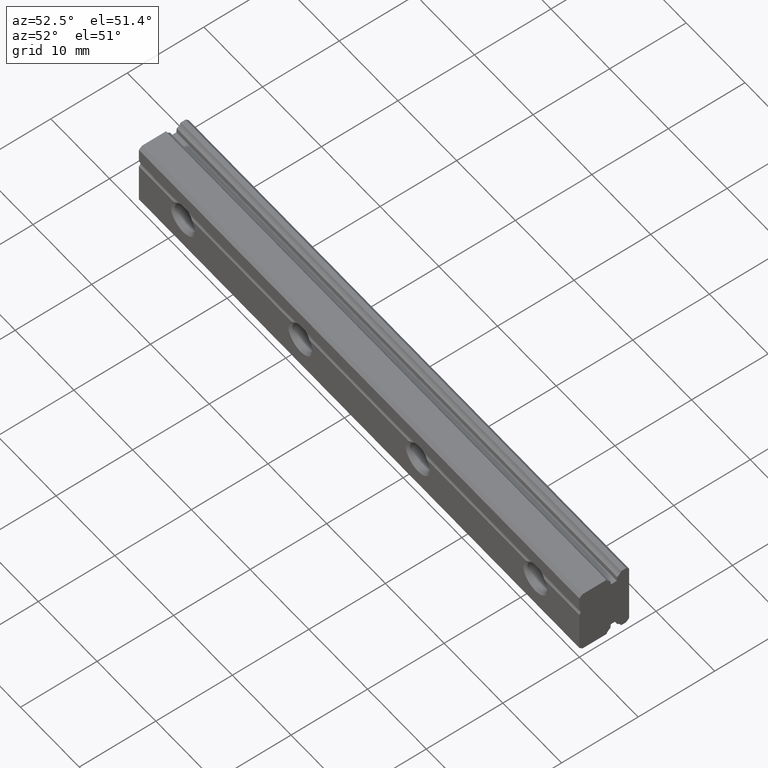
[diagram: clean part render]
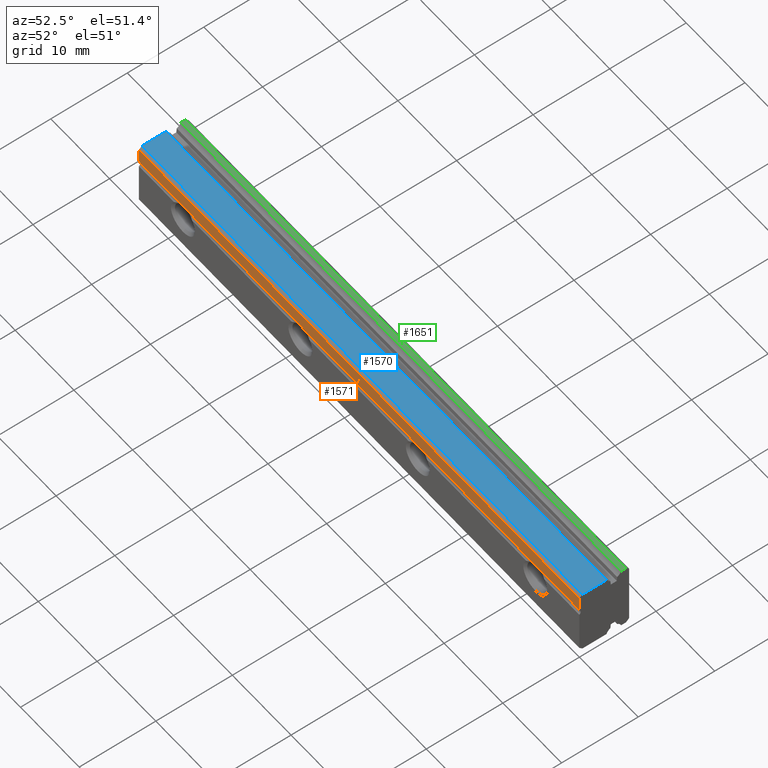
[diagram: same view with three faces highlighted in distinct colors, each labeled with its STEP entity id]
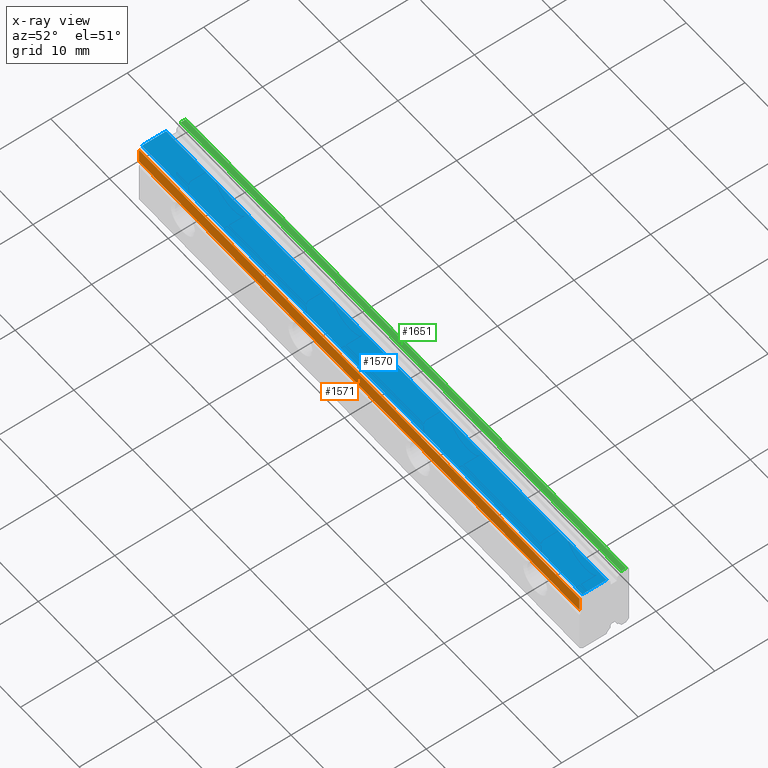
[diagram: x-ray of the same camera — body ghosted, the three highlighted faces saturated]
A machine part, auxiliary view with three faces highlighted in distinct colors.
The next image is the same camera in x-ray (body ghosted, the three faces saturated) — at least one of them is partly hidden behind the body in this view.
Their STEP definitions:

[orange] entity #1571 — the highlighted planar face has unit normal (0, -1, -0).
#647 = CARTESIAN_POINT ( 'NONE',  ( -75.00000000000000000, -1.084202172485504400E-016, 2.199999999999999300 ) ) ;
#654 = VECTOR ( 'NONE', #715, 1000.000000000000000 ) ;
#655 = CARTESIAN_POINT ( 'NONE',  ( -75.00000000000000000, -6.505213034913026600E-016, 4.100000000000000500 ) ) ;
#656 = LINE ( 'NONE', #655, #654 ) ;
#657 = DIRECTION ( 'NONE',  ( 0.0000000000000000000, 2.567847250623561900E-016, -1.000000000000000000 ) ) ;
#658 = VECTOR ( 'NONE', #657, 1000.000000000000000 ) ;
#659 = CARTESIAN_POINT ( 'NONE',  ( 0.0000000000000000000, -6.505213034913026600E-016, 4.100000000000000500 ) ) ;
#660 = LINE ( 'NONE', #659, #658 ) ;
#661 = CARTESIAN_POINT ( 'NONE',  ( -75.00000000000000000, -6.505213034913026600E-016, 4.100000000000000500 ) ) ;
#662 = CARTESIAN_POINT ( 'NONE',  ( 0.0000000000000000000, -6.505213034913026600E-016, 4.100000000000000500 ) ) ;
#695 = CARTESIAN_POINT ( 'NONE',  ( 0.0000000000000000000, -1.084202172485504400E-016, 2.199999999999999300 ) ) ;
#707 = DIRECTION ( 'NONE',  ( 1.000000000000000000, 0.0000000000000000000, 0.0000000000000000000 ) ) ;
#708 = VECTOR ( 'NONE', #707, 1000.000000000000000 ) ;
#709 = CARTESIAN_POINT ( 'NONE',  ( -75.00000000000000000, -1.084202172485504400E-016, 2.199999999999999300 ) ) ;
#710 = LINE ( 'NONE', #709, #708 ) ;
#711 = DIRECTION ( 'NONE',  ( 0.0000000000000000000, 2.567847250623561900E-016, -1.000000000000000000 ) ) ;
#712 = VECTOR ( 'NONE', #711, 1000.000000000000000 ) ;
#713 = CARTESIAN_POINT ( 'NONE',  ( -75.00000000000000000, -6.505213034913026600E-016, 4.100000000000000500 ) ) ;
#714 = LINE ( 'NONE', #713, #712 ) ;
#715 = DIRECTION ( 'NONE',  ( 1.000000000000000000, 0.0000000000000000000, 0.0000000000000000000 ) ) ;
#736 = DIRECTION ( 'NONE',  ( 0.0000000000000000000, 2.567847250623561900E-016, -1.000000000000000000 ) ) ;
#737 = DIRECTION ( 'NONE',  ( 0.0000000000000000000, -1.000000000000000000, -2.567847250623561900E-016 ) ) ;
#738 = CARTESIAN_POINT ( 'NONE',  ( -75.00000000000000000, -6.505213034913026600E-016, 4.100000000000000500 ) ) ;
#739 = AXIS2_PLACEMENT_3D ( 'NONE', #738, #737, #736 ) ;
#740 = PLANE ( 'NONE',  #739 ) ;
#741 = FACE_OUTER_BOUND ( 'NONE', #1548, .T. ) ;
#1536 = VERTEX_POINT ( 'NONE', #647 ) ;
#1543 = ORIENTED_EDGE ( 'NONE', *, *, #1550, .F. ) ;
#1544 = ORIENTED_EDGE ( 'NONE', *, *, #1552, .T. ) ;
#1545 = VERTEX_POINT ( 'NONE', #662 ) ;
#1546 = VERTEX_POINT ( 'NONE', #661 ) ;
#1547 = ORIENTED_EDGE ( 'NONE', *, *, #1551, .F. ) ;
#1548 = EDGE_LOOP ( 'NONE', ( #1543, #1547, #1544, #1549 ) ) ;
#1549 = ORIENTED_EDGE ( 'NONE', *, *, #1553, .T. ) ;
#1550 = EDGE_CURVE ( 'NONE', #1545, #1562, #660, .T. ) ;
#1551 = EDGE_CURVE ( 'NONE', #1546, #1545, #656, .T. ) ;
#1552 = EDGE_CURVE ( 'NONE', #1546, #1536, #714, .T. ) ;
#1553 = EDGE_CURVE ( 'NONE', #1536, #1562, #710, .T. ) ;
#1562 = VERTEX_POINT ( 'NONE', #695 ) ;
#1571 = ADVANCED_FACE ( 'NONE', ( #741 ), #740, .T. ) ;

[blue] entity #1570 — the highlighted planar face has unit normal (0, -0, 1).
#685 = FACE_OUTER_BOUND ( 'NONE', #1567, .T. ) ;
#686 = DIRECTION ( 'NONE',  ( 1.000000000000000000, 0.0000000000000000000, 0.0000000000000000000 ) ) ;
#687 = VECTOR ( 'NONE', #686, 1000.000000000000000 ) ;
#688 = CARTESIAN_POINT ( 'NONE',  ( -75.00000000000000000, 3.546060798583052800, 4.500000000000001800 ) ) ;
#689 = LINE ( 'NONE', #688, #687 ) ;
#690 = DIRECTION ( 'NONE',  ( 0.0000000000000000000, -1.000000000000000000, -2.756977037376558500E-016 ) ) ;
#691 = VECTOR ( 'NONE', #690, 1000.000000000000000 ) ;
#692 = CARTESIAN_POINT ( 'NONE',  ( 0.0000000000000000000, 0.3999999999999994100, 4.500000000000000900 ) ) ;
#693 = LINE ( 'NONE', #692, #691 ) ;
#694 = CARTESIAN_POINT ( 'NONE',  ( 0.0000000000000000000, 3.546060798583052800, 4.500000000000001800 ) ) ;
#700 = CARTESIAN_POINT ( 'NONE',  ( 0.0000000000000000000, 0.3999999999999994100, 4.500000000000000900 ) ) ;
#727 = DIRECTION ( 'NONE',  ( 1.000000000000000000, 0.0000000000000000000, 0.0000000000000000000 ) ) ;
#728 = VECTOR ( 'NONE', #727, 1000.000000000000000 ) ;
#729 = CARTESIAN_POINT ( 'NONE',  ( -75.00000000000000000, 0.3999999999999994100, 4.500000000000000900 ) ) ;
#730 = LINE ( 'NONE', #729, #728 ) ;
#731 = CARTESIAN_POINT ( 'NONE',  ( -75.00000000000000000, 0.3999999999999994100, 4.500000000000000900 ) ) ;
#742 = DIRECTION ( 'NONE',  ( 0.0000000000000000000, -1.000000000000000000, -2.756977037376558000E-016 ) ) ;
#743 = DIRECTION ( 'NONE',  ( 0.0000000000000000000, -2.756977037376558000E-016, 1.000000000000000000 ) ) ;
#744 = CARTESIAN_POINT ( 'NONE',  ( -75.00000000000000000, 0.3999999999999994100, 4.500000000000000900 ) ) ;
#745 = AXIS2_PLACEMENT_3D ( 'NONE', #744, #743, #742 ) ;
#746 = PLANE ( 'NONE',  #745 ) ;
#960 = DIRECTION ( 'NONE',  ( 0.0000000000000000000, -1.000000000000000000, -2.756977037376558500E-016 ) ) ;
#961 = VECTOR ( 'NONE', #960, 1000.000000000000000 ) ;
#962 = CARTESIAN_POINT ( 'NONE',  ( -75.00000000000000000, 0.3999999999999994100, 4.500000000000000900 ) ) ;
#963 = LINE ( 'NONE', #962, #961 ) ;
#964 = CARTESIAN_POINT ( 'NONE',  ( -75.00000000000000000, 3.546060798583052800, 4.500000000000001800 ) ) ;
#1558 = VERTEX_POINT ( 'NONE', #700 ) ;
#1564 = ORIENTED_EDGE ( 'NONE', *, *, #1569, .F. ) ;
#1565 = ORIENTED_EDGE ( 'NONE', *, *, #1568, .F. ) ;
#1566 = VERTEX_POINT ( 'NONE', #694 ) ;
#1567 = EDGE_LOOP ( 'NONE', ( #1565, #1564, #1698, #1699 ) ) ;
#1568 = EDGE_CURVE ( 'NONE', #1566, #1558, #693, .T. ) ;
#1569 = EDGE_CURVE ( 'NONE', #1697, #1566, #689, .T. ) ;
#1570 = ADVANCED_FACE ( 'NONE', ( #685 ), #746, .T. ) ;
#1575 = VERTEX_POINT ( 'NONE', #731 ) ;
#1577 = EDGE_CURVE ( 'NONE', #1575, #1558, #730, .T. ) ;
#1697 = VERTEX_POINT ( 'NONE', #964 ) ;
#1698 = ORIENTED_EDGE ( 'NONE', *, *, #1700, .T. ) ;
#1699 = ORIENTED_EDGE ( 'NONE', *, *, #1577, .T. ) ;
#1700 = EDGE_CURVE ( 'NONE', #1697, #1575, #963, .T. ) ;

[green] entity #1651 — the highlighted planar face has unit normal (0, 0, 1).
#350 = DIRECTION ( 'NONE',  ( 1.000000000000000000, 0.0000000000000000000, 0.0000000000000000000 ) ) ;
#792 = CARTESIAN_POINT ( 'NONE',  ( -75.00000000000000000, 5.453939201416945400, 4.500000000000001800 ) ) ;
#793 = DIRECTION ( 'NONE',  ( 1.000000000000000000, 0.0000000000000000000, 0.0000000000000000000 ) ) ;
#794 = VECTOR ( 'NONE', #793, 1000.000000000000000 ) ;
#795 = CARTESIAN_POINT ( 'NONE',  ( -75.00000000000000000, 5.453939201416945400, 4.500000000000001800 ) ) ;
#796 = LINE ( 'NONE', #795, #794 ) ;
#797 = CARTESIAN_POINT ( 'NONE',  ( 0.0000000000000000000, 5.453939201416945400, 4.500000000000001800 ) ) ;
#825 = DIRECTION ( 'NONE',  ( 0.0000000000000000000, -1.000000000000000000, 0.0000000000000000000 ) ) ;
#826 = VECTOR ( 'NONE', #825, 1000.000000000000000 ) ;
#827 = CARTESIAN_POINT ( 'NONE',  ( 0.0000000000000000000, 6.099999999999992500, 4.500000000000001800 ) ) ;
#828 = LINE ( 'NONE', #827, #826 ) ;
#833 = DIRECTION ( 'NONE',  ( 0.0000000000000000000, -1.000000000000000000, 0.0000000000000000000 ) ) ;
#834 = VECTOR ( 'NONE', #833, 1000.000000000000000 ) ;
#835 = CARTESIAN_POINT ( 'NONE',  ( -75.00000000000000000, 6.099999999999992500, 4.500000000000001800 ) ) ;
#836 = LINE ( 'NONE', #835, #834 ) ;
#837 = CARTESIAN_POINT ( 'NONE',  ( -75.00000000000000000, 6.099999999999992500, 4.500000000000001800 ) ) ;
#838 = DIRECTION ( 'NONE',  ( 1.000000000000000000, 0.0000000000000000000, 0.0000000000000000000 ) ) ;
#839 = VECTOR ( 'NONE', #838, 1000.000000000000000 ) ;
#840 = CARTESIAN_POINT ( 'NONE',  ( -75.00000000000000000, 6.099999999999992500, 4.500000000000001800 ) ) ;
#841 = LINE ( 'NONE', #840, #839 ) ;
#842 = CARTESIAN_POINT ( 'NONE',  ( 0.0000000000000000000, 6.099999999999992500, 4.500000000000001800 ) ) ;
#847 = DIRECTION ( 'NONE',  ( 0.0000000000000000000, 0.0000000000000000000, 1.000000000000000000 ) ) ;
#848 = CARTESIAN_POINT ( 'NONE',  ( -75.00000000000000000, 6.099999999999992500, 4.500000000000001800 ) ) ;
#849 = AXIS2_PLACEMENT_3D ( 'NONE', #848, #847, #350 ) ;
#850 = PLANE ( 'NONE',  #849 ) ;
#852 = FACE_OUTER_BOUND ( 'NONE', #1631, .T. ) ;
#1610 = VERTEX_POINT ( 'NONE', #797 ) ;
#1611 = EDGE_CURVE ( 'NONE', #1613, #1610, #796, .T. ) ;
#1613 = VERTEX_POINT ( 'NONE', #792 ) ;
#1621 = ORIENTED_EDGE ( 'NONE', *, *, #1623, .F. ) ;
#1622 = VERTEX_POINT ( 'NONE', #842 ) ;
#1623 = EDGE_CURVE ( 'NONE', #1624, #1622, #841, .T. ) ;
#1624 = VERTEX_POINT ( 'NONE', #837 ) ;
#1625 = EDGE_CURVE ( 'NONE', #1624, #1613, #836, .T. ) ;
#1626 = ORIENTED_EDGE ( 'NONE', *, *, #1625, .T. ) ;
#1627 = ORIENTED_EDGE ( 'NONE', *, *, #1611, .T. ) ;
#1630 = ORIENTED_EDGE ( 'NONE', *, *, #1632, .F. ) ;
#1631 = EDGE_LOOP ( 'NONE', ( #1630, #1621, #1626, #1627 ) ) ;
#1632 = EDGE_CURVE ( 'NONE', #1622, #1610, #828, .T. ) ;
#1651 = ADVANCED_FACE ( 'NONE', ( #852 ), #850, .T. ) ;